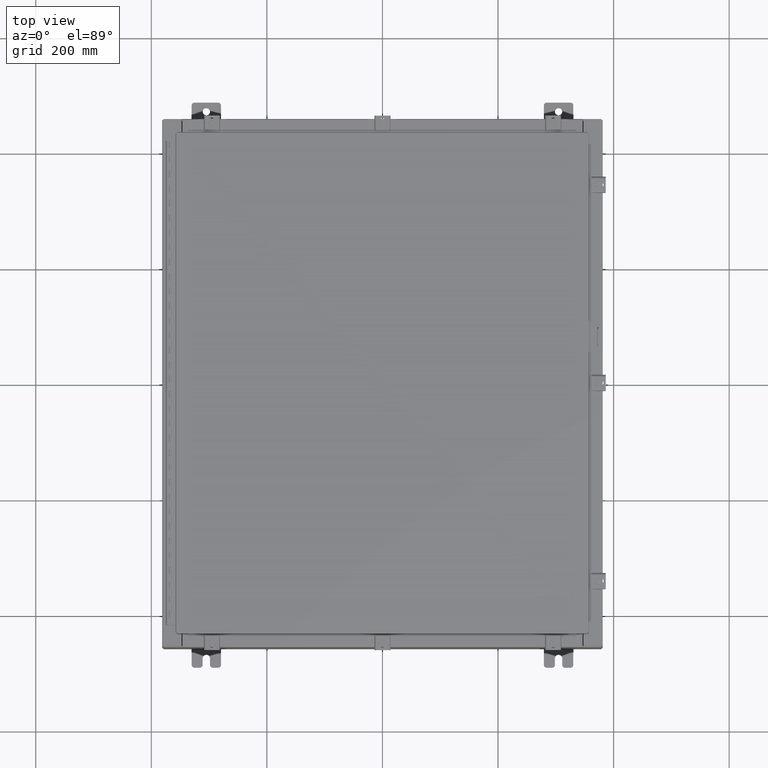
[diagram: clean part render]
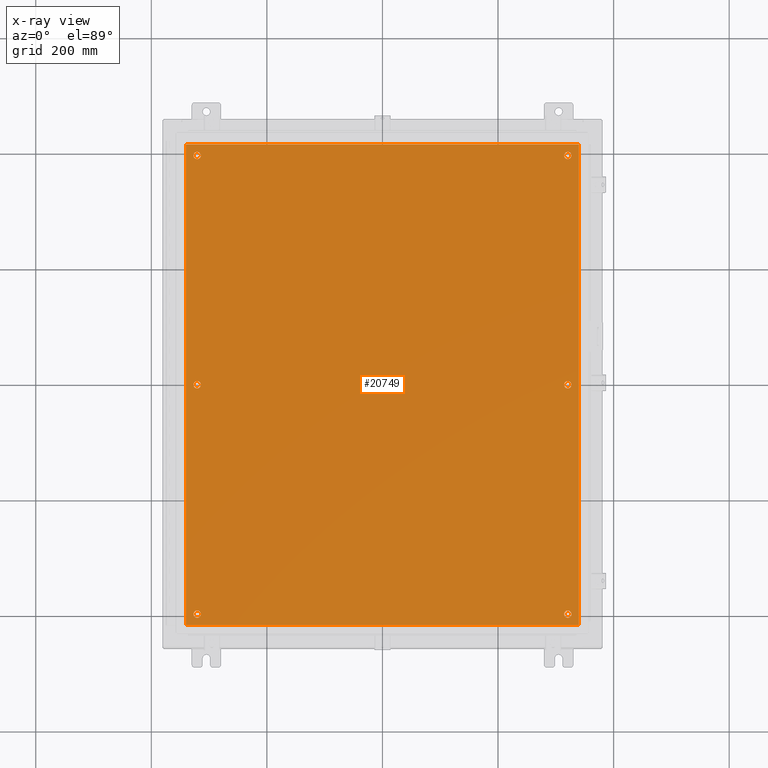
[diagram: x-ray — body ghosted, one internal face saturated and labeled with its STEP entity id]
A machine part, top view, then the same camera in x-ray: the body is ghosted and one INTERNAL B-rep face — a face not visible from any outside direction — is saturated and labeled: STEP entity #20749.
In plain terms, the highlighted planar face has unit normal (0, 0, -1).
Its self-contained STEP definition (entity closure, byte-faithful):
#130 = VECTOR ( 'NONE', #8944, 39.37007874015748100 ) ;
#372 = ORIENTED_EDGE ( 'NONE', *, *, #15246, .T. ) ;
#822 = CARTESIAN_POINT ( 'NONE',  ( -13.38300000000000300, -16.38299999999999900, -0.1040000000000020100 ) ) ;
#1215 = AXIS2_PLACEMENT_3D ( 'NONE', #34188, #14226, #37564 ) ;
#1238 = DIRECTION ( 'NONE',  ( -1.000000000000000000, 0.0000000000000000000, -0.0000000000000000000 ) ) ;
#2357 = AXIS2_PLACEMENT_3D ( 'NONE', #27060, #7088, #30421 ) ;
#2370 = DIRECTION ( 'NONE',  ( -0.0000000000000000000, -0.0000000000000000000, 1.000000000000000000 ) ) ;
#2462 = EDGE_CURVE ( 'NONE', #17542, #28210, #33402, .T. ) ;
#2540 = VERTEX_POINT ( 'NONE', #24551 ) ;
#2620 = CARTESIAN_POINT ( 'NONE',  ( -12.62500000000000200, 2.628543122537475400E-016, -0.1039999999999999800 ) ) ;
#2917 = VECTOR ( 'NONE', #9326, 39.37007874015748100 ) ;
#2962 = CIRCLE ( 'NONE', #26203, 0.2500000000000008900 ) ;
#3034 = EDGE_CURVE ( 'NONE', #8478, #36045, #7797, .T. ) ;
#3340 = FACE_BOUND ( 'NONE', #10277, .T. ) ;
#3450 = CARTESIAN_POINT ( 'NONE',  ( 12.37500000000000400, 15.62500000000000400, -0.1039999999999999800 ) ) ;
#3635 = ORIENTED_EDGE ( 'NONE', *, *, #21120, .F. ) ;
#3733 = VERTEX_POINT ( 'NONE', #32958 ) ;
#3818 = CARTESIAN_POINT ( 'NONE',  ( 12.37500000000000400, -15.62500000000000400, -0.1039999999999999800 ) ) ;
#4103 = CARTESIAN_POINT ( 'NONE',  ( -12.62500000000000200, 2.628543122537475400E-016, -0.1039999999999999800 ) ) ;
#4404 = FACE_BOUND ( 'NONE', #13892, .T. ) ;
#4430 = ORIENTED_EDGE ( 'NONE', *, *, #10488, .T. ) ;
#4994 = EDGE_CURVE ( 'NONE', #6120, #36397, #15007, .T. ) ;
#5027 = DIRECTION ( 'NONE',  ( -0.0000000000000000000, -0.0000000000000000000, 1.000000000000000000 ) ) ;
#5426 = FACE_BOUND ( 'NONE', #40807, .T. ) ;
#5975 = DIRECTION ( 'NONE',  ( -1.000000000000000000, 0.0000000000000000000, 0.0000000000000000000 ) ) ;
#6004 = AXIS2_PLACEMENT_3D ( 'NONE', #4103, #27406, #7466 ) ;
#6120 = VERTEX_POINT ( 'NONE', #25221 ) ;
#7088 = DIRECTION ( 'NONE',  ( -0.0000000000000000000, -0.0000000000000000000, 1.000000000000000000 ) ) ;
#7413 = CIRCLE ( 'NONE', #13998, 0.2500000000000008900 ) ;
#7466 = DIRECTION ( 'NONE',  ( -1.000000000000000000, 0.0000000000000000000, 0.0000000000000000000 ) ) ;
#7492 = LINE ( 'NONE', #19711, #16359 ) ;
#7797 = CIRCLE ( 'NONE', #19652, 0.2500000000000008900 ) ;
#8097 = CIRCLE ( 'NONE', #20809, 0.2500000000000008900 ) ;
#8478 = VERTEX_POINT ( 'NONE', #34461 ) ;
#8944 = DIRECTION ( 'NONE',  ( 1.000000000000000000, -0.0000000000000000000, -0.0000000000000000000 ) ) ;
#8989 = CARTESIAN_POINT ( 'NONE',  ( 12.62500000000000400, -15.62500000000000400, -0.1039999999999999800 ) ) ;
#8995 = CIRCLE ( 'NONE', #30219, 0.2500000000000008900 ) ;
#9300 = VERTEX_POINT ( 'NONE', #17095 ) ;
#9326 = DIRECTION ( 'NONE',  ( 0.0000000000000000000, -1.000000000000000000, 0.0000000000000000000 ) ) ;
#9489 = VERTEX_POINT ( 'NONE', #27868 ) ;
#10277 = EDGE_LOOP ( 'NONE', ( #39163, #30890 ) ) ;
#10488 = EDGE_CURVE ( 'NONE', #20708, #3733, #16090, .T. ) ;
#10736 = CARTESIAN_POINT ( 'NONE',  ( -12.37500000000000400, 15.62500000000000400, -0.1039999999999999800 ) ) ;
#10849 = CARTESIAN_POINT ( 'NONE',  ( 13.38299999999999900, -16.38300000000000300, -0.1040000000000009100 ) ) ;
#11319 = ORIENTED_EDGE ( 'NONE', *, *, #26208, .T. ) ;
#11596 = ORIENTED_EDGE ( 'NONE', *, *, #3034, .T. ) ;
#11801 = LINE ( 'NONE', #42754, #2917 ) ;
#11838 = AXIS2_PLACEMENT_3D ( 'NONE', #17866, #41208, #21226 ) ;
#11947 = DIRECTION ( 'NONE',  ( -0.0000000000000000000, -0.0000000000000000000, 1.000000000000000000 ) ) ;
#12019 = ORIENTED_EDGE ( 'NONE', *, *, #15917, .F. ) ;
#12182 = ORIENTED_EDGE ( 'NONE', *, *, #2462, .T. ) ;
#12220 = FACE_BOUND ( 'NONE', #43242, .T. ) ;
#12229 = EDGE_CURVE ( 'NONE', #36397, #6120, #2962, .T. ) ;
#12328 = DIRECTION ( 'NONE',  ( -1.000000000000000000, 0.0000000000000000000, 0.0000000000000000000 ) ) ;
#13659 = ORIENTED_EDGE ( 'NONE', *, *, #19640, .F. ) ;
#13892 = EDGE_LOOP ( 'NONE', ( #22566, #23405 ) ) ;
#13998 = AXIS2_PLACEMENT_3D ( 'NONE', #14990, #38335, #18331 ) ;
#14226 = DIRECTION ( 'NONE',  ( -0.0000000000000000000, -0.0000000000000000000, 1.000000000000000000 ) ) ;
#14990 = CARTESIAN_POINT ( 'NONE',  ( 12.62500000000000400, 15.62500000000000400, -0.1039999999999999800 ) ) ;
#15007 = CIRCLE ( 'NONE', #18298, 0.2500000000000008900 ) ;
#15246 = EDGE_CURVE ( 'NONE', #39939, #34560, #7413, .T. ) ;
#15586 = CARTESIAN_POINT ( 'NONE',  ( -12.37500000000000400, -15.62500000000000400, -0.1039999999999999800 ) ) ;
#15917 = EDGE_CURVE ( 'NONE', #26111, #31349, #35601, .T. ) ;
#15923 = EDGE_CURVE ( 'NONE', #3733, #20708, #8995, .T. ) ;
#16090 = CIRCLE ( 'NONE', #2357, 0.2500000000000008900 ) ;
#16143 = EDGE_LOOP ( 'NONE', ( #40025, #12182 ) ) ;
#16359 = VECTOR ( 'NONE', #39692, 39.37007874015748100 ) ;
#16519 = CIRCLE ( 'NONE', #6004, 0.2500000000000008900 ) ;
#16614 = VERTEX_POINT ( 'NONE', #15586 ) ;
#16807 = CARTESIAN_POINT ( 'NONE',  ( -12.62500000000000400, 15.62500000000000400, -0.1039999999999999800 ) ) ;
#17095 = CARTESIAN_POINT ( 'NONE',  ( -12.87500000000000500, -15.62500000000000400, -0.1039999999999999800 ) ) ;
#17455 = AXIS2_PLACEMENT_3D ( 'NONE', #19823, #43178, #23156 ) ;
#17542 = VERTEX_POINT ( 'NONE', #3818 ) ;
#17849 = CARTESIAN_POINT ( 'NONE',  ( 0.0000000000000000000, 0.0000000000000000000, -0.1039999999999999800 ) ) ;
#17866 = CARTESIAN_POINT ( 'NONE',  ( 12.62500000000000400, 15.62500000000000400, -0.1039999999999999800 ) ) ;
#18298 = AXIS2_PLACEMENT_3D ( 'NONE', #16807, #40162, #20169 ) ;
#18331 = DIRECTION ( 'NONE',  ( -1.000000000000000000, 0.0000000000000000000, 0.0000000000000000000 ) ) ;
#18359 = CARTESIAN_POINT ( 'NONE',  ( -12.37500000000000200, 2.628543122537475400E-016, -0.1039999999999999800 ) ) ;
#18652 = LINE ( 'NONE', #10849, #36394 ) ;
#18686 = EDGE_CURVE ( 'NONE', #31349, #9489, #18652, .T. ) ;
#19194 = CARTESIAN_POINT ( 'NONE',  ( 12.87500000000000500, 15.62500000000000400, -0.1039999999999999800 ) ) ;
#19275 = EDGE_CURVE ( 'NONE', #36045, #8478, #16519, .T. ) ;
#19383 = EDGE_LOOP ( 'NONE', ( #12019, #13659, #3635, #42841 ) ) ;
#19640 = EDGE_CURVE ( 'NONE', #2540, #26111, #11801, .T. ) ;
#19652 = AXIS2_PLACEMENT_3D ( 'NONE', #2620, #25945, #5975 ) ;
#19711 = CARTESIAN_POINT ( 'NONE',  ( 13.50000000000000000, 16.38299999999999900, -0.1040000000000009100 ) ) ;
#19823 = CARTESIAN_POINT ( 'NONE',  ( -12.62500000000000400, -15.62500000000000400, -0.1039999999999999800 ) ) ;
#20169 = DIRECTION ( 'NONE',  ( -1.000000000000000000, 0.0000000000000000000, 0.0000000000000000000 ) ) ;
#20708 = VERTEX_POINT ( 'NONE', #37697 ) ;
#20749 = ADVANCED_FACE ( 'NONE', ( #21113, #5426, #4404, #29950, #12220, #3340, #37812 ), #37832, .T. ) ;
#20803 = DIRECTION ( 'NONE',  ( 0.0000000000000000000, 1.000000000000000000, 0.0000000000000000000 ) ) ;
#20809 = AXIS2_PLACEMENT_3D ( 'NONE', #8989, #32303, #12328 ) ;
#21113 = FACE_BOUND ( 'NONE', #27194, .T. ) ;
#21120 = EDGE_CURVE ( 'NONE', #9489, #2540, #7492, .T. ) ;
#21211 = DIRECTION ( 'NONE',  ( 0.0000000000000000000, 0.0000000000000000000, -1.000000000000000000 ) ) ;
#21226 = DIRECTION ( 'NONE',  ( -1.000000000000000000, 0.0000000000000000000, 0.0000000000000000000 ) ) ;
#22214 = CARTESIAN_POINT ( 'NONE',  ( -13.50000000000000000, -16.38299999999999900, -0.1040000000000020100 ) ) ;
#22356 = CARTESIAN_POINT ( 'NONE',  ( 12.62500000000000200, 3.355087480100814800E-015, -0.1039999999999999800 ) ) ;
#22566 = ORIENTED_EDGE ( 'NONE', *, *, #27226, .T. ) ;
#23156 = DIRECTION ( 'NONE',  ( -1.000000000000000000, 0.0000000000000000000, 0.0000000000000000000 ) ) ;
#23405 = ORIENTED_EDGE ( 'NONE', *, *, #34843, .T. ) ;
#24551 = CARTESIAN_POINT ( 'NONE',  ( -13.38300000000000300, 16.38299999999998800, -0.1040000000000063800 ) ) ;
#25010 = CARTESIAN_POINT ( 'NONE',  ( -12.62500000000000400, -15.62500000000000400, -0.1039999999999999800 ) ) ;
#25221 = CARTESIAN_POINT ( 'NONE',  ( -12.87500000000000500, 15.62500000000000400, -0.1039999999999999800 ) ) ;
#25702 = DIRECTION ( 'NONE',  ( -1.000000000000000000, 0.0000000000000000000, 0.0000000000000000000 ) ) ;
#25945 = DIRECTION ( 'NONE',  ( -0.0000000000000000000, -0.0000000000000000000, 1.000000000000000000 ) ) ;
#26111 = VERTEX_POINT ( 'NONE', #822 ) ;
#26203 = AXIS2_PLACEMENT_3D ( 'NONE', #31917, #11947, #35258 ) ;
#26208 = EDGE_CURVE ( 'NONE', #34560, #39939, #27465, .T. ) ;
#27060 = CARTESIAN_POINT ( 'NONE',  ( 12.62500000000000200, 3.355087480100814800E-015, -0.1039999999999999800 ) ) ;
#27194 = EDGE_LOOP ( 'NONE', ( #4430, #31837 ) ) ;
#27226 = EDGE_CURVE ( 'NONE', #16614, #9300, #36269, .T. ) ;
#27406 = DIRECTION ( 'NONE',  ( -0.0000000000000000000, -0.0000000000000000000, 1.000000000000000000 ) ) ;
#27465 = CIRCLE ( 'NONE', #11838, 0.2500000000000008900 ) ;
#27689 = ORIENTED_EDGE ( 'NONE', *, *, #19275, .T. ) ;
#27868 = CARTESIAN_POINT ( 'NONE',  ( 13.38299999999999900, 16.38300000000000300, -0.1040000000000009100 ) ) ;
#28210 = VERTEX_POINT ( 'NONE', #28741 ) ;
#28366 = DIRECTION ( 'NONE',  ( -1.000000000000000000, 0.0000000000000000000, 0.0000000000000000000 ) ) ;
#28741 = CARTESIAN_POINT ( 'NONE',  ( 12.87500000000000500, -15.62500000000000400, -0.1039999999999999800 ) ) ;
#29950 = FACE_BOUND ( 'NONE', #16143, .T. ) ;
#30219 = AXIS2_PLACEMENT_3D ( 'NONE', #22356, #2370, #25702 ) ;
#30421 = DIRECTION ( 'NONE',  ( -1.000000000000000000, 0.0000000000000000000, 0.0000000000000000000 ) ) ;
#30890 = ORIENTED_EDGE ( 'NONE', *, *, #4994, .T. ) ;
#31349 = VERTEX_POINT ( 'NONE', #39611 ) ;
#31415 = CIRCLE ( 'NONE', #39490, 0.2500000000000008900 ) ;
#31837 = ORIENTED_EDGE ( 'NONE', *, *, #15923, .T. ) ;
#31917 = CARTESIAN_POINT ( 'NONE',  ( -12.62500000000000400, 15.62500000000000400, -0.1039999999999999800 ) ) ;
#32303 = DIRECTION ( 'NONE',  ( -0.0000000000000000000, -0.0000000000000000000, 1.000000000000000000 ) ) ;
#32958 = CARTESIAN_POINT ( 'NONE',  ( 12.37500000000000200, 3.385703650079498500E-015, -0.1039999999999999800 ) ) ;
#33402 = CIRCLE ( 'NONE', #1215, 0.2500000000000008900 ) ;
#34188 = CARTESIAN_POINT ( 'NONE',  ( 12.62500000000000400, -15.62500000000000400, -0.1039999999999999800 ) ) ;
#34461 = CARTESIAN_POINT ( 'NONE',  ( -12.87500000000000400, 2.934704822324311800E-016, -0.1039999999999999800 ) ) ;
#34560 = VERTEX_POINT ( 'NONE', #3450 ) ;
#34843 = EDGE_CURVE ( 'NONE', #9300, #16614, #31415, .T. ) ;
#35258 = DIRECTION ( 'NONE',  ( -1.000000000000000000, 0.0000000000000000000, 0.0000000000000000000 ) ) ;
#35601 = LINE ( 'NONE', #22214, #130 ) ;
#36045 = VERTEX_POINT ( 'NONE', #18359 ) ;
#36269 = CIRCLE ( 'NONE', #17455, 0.2500000000000008900 ) ;
#36394 = VECTOR ( 'NONE', #20803, 39.37007874015748100 ) ;
#36397 = VERTEX_POINT ( 'NONE', #10736 ) ;
#37564 = DIRECTION ( 'NONE',  ( -1.000000000000000000, 0.0000000000000000000, 0.0000000000000000000 ) ) ;
#37697 = CARTESIAN_POINT ( 'NONE',  ( 12.87500000000000400, 3.355087480100814800E-015, -0.1039999999999999800 ) ) ;
#37812 = FACE_OUTER_BOUND ( 'NONE', #19383, .T. ) ;
#37832 = PLANE ( 'NONE',  #38474 ) ;
#38335 = DIRECTION ( 'NONE',  ( -0.0000000000000000000, -0.0000000000000000000, 1.000000000000000000 ) ) ;
#38474 = AXIS2_PLACEMENT_3D ( 'NONE', #17849, #21211, #1238 ) ;
#39163 = ORIENTED_EDGE ( 'NONE', *, *, #12229, .T. ) ;
#39490 = AXIS2_PLACEMENT_3D ( 'NONE', #25010, #5027, #28366 ) ;
#39611 = CARTESIAN_POINT ( 'NONE',  ( 13.38299999999999900, -16.38300000000000300, -0.1040000000000009100 ) ) ;
#39692 = DIRECTION ( 'NONE',  ( -1.000000000000000000, -0.0000000000000000000, -0.0000000000000000000 ) ) ;
#39894 = EDGE_CURVE ( 'NONE', #28210, #17542, #8097, .T. ) ;
#39939 = VERTEX_POINT ( 'NONE', #19194 ) ;
#40025 = ORIENTED_EDGE ( 'NONE', *, *, #39894, .T. ) ;
#40162 = DIRECTION ( 'NONE',  ( -0.0000000000000000000, -0.0000000000000000000, 1.000000000000000000 ) ) ;
#40807 = EDGE_LOOP ( 'NONE', ( #27689, #11596 ) ) ;
#41208 = DIRECTION ( 'NONE',  ( -0.0000000000000000000, -0.0000000000000000000, 1.000000000000000000 ) ) ;
#42754 = CARTESIAN_POINT ( 'NONE',  ( -13.38300000000000300, 16.38299999999998800, -0.1040000000000063800 ) ) ;
#42841 = ORIENTED_EDGE ( 'NONE', *, *, #18686, .F. ) ;
#43178 = DIRECTION ( 'NONE',  ( -0.0000000000000000000, -0.0000000000000000000, 1.000000000000000000 ) ) ;
#43242 = EDGE_LOOP ( 'NONE', ( #372, #11319 ) ) ;